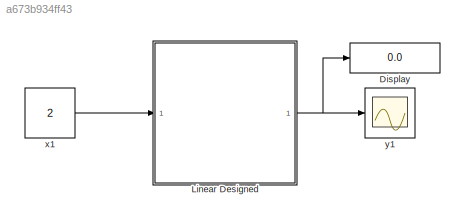
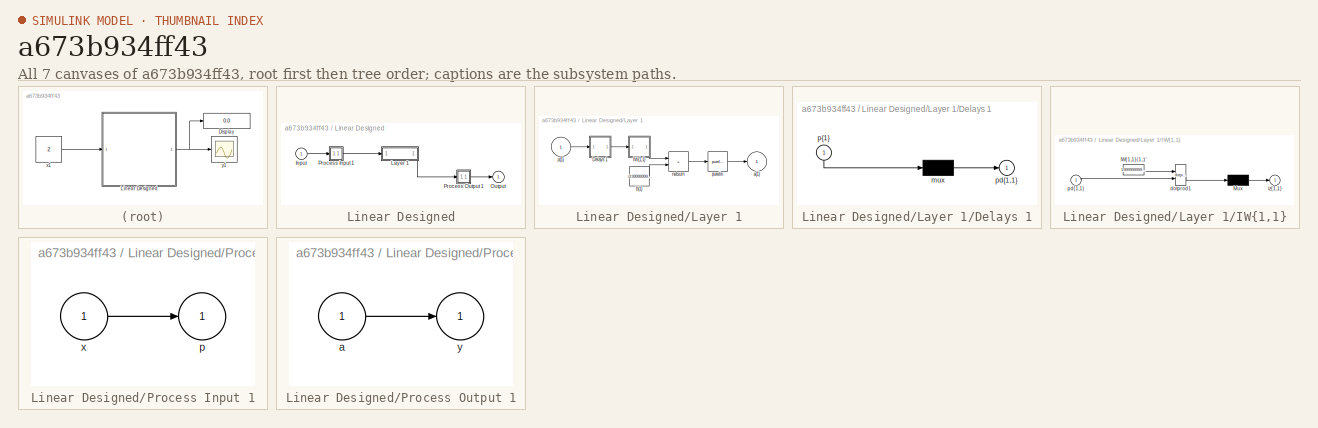
[diagram: thumbnail index - all 7 canvases of the model, root first then tree order]
MODEL slx_a673b934ff43
KIND model
CONFIG AbsTol = auto
CONFIG EnableMultiTasking = off
CONFIG FixedStep = auto
CONFIG MaxStep = auto
CONFIG MinStep = auto
CONFIG RelTol = 1e-3
CONFIG SampleTimeConstraint = Unconstrained
CONFIG SolverName = VariableStepAuto
CONFIG StartTime = 0.0
CONFIG StopTime = 10.0
BLOCK [Display] Display
  Decimation = 1
  Ports = [1]
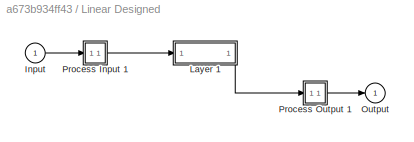
BLOCK [SubSystem] Linear Designed
  Ports = [1, 1]
  RequestExecContextInheritance = off
BLOCK [Inport] Linear Designed/Input
  PortDimensions = 1
  SampleTime = 1
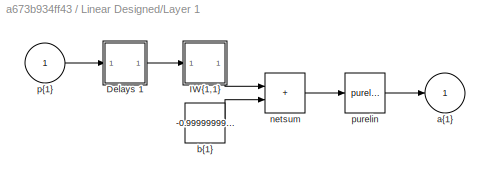
BLOCK [SubSystem] Linear Designed/Layer 1
  Ports = [1, 1]
  RequestExecContextInheritance = off
BLOCK [SubSystem] Linear Designed/Layer 1/Delays 1
  Ports = [1, 1]
  RequestExecContextInheritance = off
BLOCK [Mux] Linear Designed/Layer 1/Delays 1/mux
  Inputs = 1
  Ports = [1, 1]
BLOCK [Outport] Linear Designed/Layer 1/Delays 1/pd{1,1}
BLOCK [Inport] Linear Designed/Layer 1/Delays 1/p{1}
  NameLocation = left
  PortDimensions = 1
  SampleTime = 1
BLOCK [SubSystem] Linear Designed/Layer 1/IW{1,1}
  Ports = [1, 1]
  RequestExecContextInheritance = off
BLOCK [Constant] Linear Designed/Layer 1/IW{1,1}/IW{1,1}(1,:)'
  Value = 1.9999999999999997779553950749686919152736663818359375
BLOCK [Mux] Linear Designed/Layer 1/IW{1,1}/Mux
  Inputs = 1
  Ports = [1, 1]
BLOCK [Reference] Linear Designed/Layer 1/IW{1,1}/dotprod1  REF=neural/Weight Functions/dotprod
  Ports = [2, 1]
  SourceBlock = neural/Weight Functions/dotprod
  SourceProductBaseCode = NN
  SourceType = DOTPROD
BLOCK [Outport] Linear Designed/Layer 1/IW{1,1}/iz{1,1}
BLOCK [Inport] Linear Designed/Layer 1/IW{1,1}/pd{1,1}
  PortDimensions = 1
  SampleTime = 1
BLOCK [Outport] Linear Designed/Layer 1/a{1}
  InitialOutput = 0
BLOCK [Constant] Linear Designed/Layer 1/b{1}
  Value = -0.99999999999999966693309261245303787291049957275390625
BLOCK [Sum] Linear Designed/Layer 1/netsum
  IconShape = rectangular
  InputSameDT = on
  Inputs = 2
  OutDataTypeStr = Inherit: Same as first input
  Ports = [2, 1]
  SaturateOnIntegerOverflow = on
BLOCK [Reference] Linear Designed/Layer 1/purelin  REF=neural/Transfer Functions/purelin
  Ports = [1, 1]
  SourceBlock = neural/Transfer Functions/purelin
  SourceProductBaseCode = NN
  SourceType = PURELIN
BLOCK [Inport] Linear Designed/Layer 1/p{1}
  PortDimensions = 1
  SampleTime = 1
BLOCK [Outport] Linear Designed/Output
  InitialOutput = 0
BLOCK [SubSystem] Linear Designed/Process Input 1
  Ports = [1, 1]
  RequestExecContextInheritance = off
BLOCK [Outport] Linear Designed/Process Input 1/p
  PortDimensions = 1
  SampleTime = 1
BLOCK [Inport] Linear Designed/Process Input 1/x
  PortDimensions = 1
  SampleTime = 1
BLOCK [SubSystem] Linear Designed/Process Output 1
  Ports = [1, 1]
  RequestExecContextInheritance = off
BLOCK [Inport] Linear Designed/Process Output 1/a
  PortDimensions = 1
  SampleTime = 1
BLOCK [Outport] Linear Designed/Process Output 1/y
  PortDimensions = 1
  SampleTime = 1
BLOCK [Constant] x1
  SampleTime = 1
  Value = 2
BLOCK [Scope] y1
  Floating = off
  NumInputPorts = 1
  Ports = [1]
LINE Linear Designed/Input:1 -> Linear Designed/Process Input 1:1
LINE Linear Designed/Layer 1/Delays 1/mux:1 -> Linear Designed/Layer 1/Delays 1/pd{1,1}:1
LINE Linear Designed/Layer 1/Delays 1/p{1}:1 -> Linear Designed/Layer 1/Delays 1/mux:1
LINE Linear Designed/Layer 1/Delays 1:1 -> Linear Designed/Layer 1/IW{1,1}:1
LINE Linear Designed/Layer 1/IW{1,1}/IW{1,1}(1,:)':1 -> Linear Designed/Layer 1/IW{1,1}/dotprod1:1
LINE Linear Designed/Layer 1/IW{1,1}/Mux:1 -> Linear Designed/Layer 1/IW{1,1}/iz{1,1}:1
LINE Linear Designed/Layer 1/IW{1,1}/dotprod1:1 -> Linear Designed/Layer 1/IW{1,1}/Mux:1
LINE Linear Designed/Layer 1/IW{1,1}/pd{1,1}:1 -> Linear Designed/Layer 1/IW{1,1}/dotprod1:2
LINE Linear Designed/Layer 1/IW{1,1}:1 -> Linear Designed/Layer 1/netsum:1
LINE Linear Designed/Layer 1/b{1}:1 -> Linear Designed/Layer 1/netsum:2
LINE Linear Designed/Layer 1/netsum:1 -> Linear Designed/Layer 1/purelin:1
LINE Linear Designed/Layer 1/purelin:1 -> Linear Designed/Layer 1/a{1}:1
LINE Linear Designed/Layer 1/p{1}:1 -> Linear Designed/Layer 1/Delays 1:1
LINE Linear Designed/Layer 1:1 -> Linear Designed/Process Output 1:1
LINE Linear Designed/Process Input 1/x:1 -> Linear Designed/Process Input 1/p:1
LINE Linear Designed/Process Input 1:1 -> Linear Designed/Layer 1:1
LINE Linear Designed/Process Output 1/a:1 -> Linear Designed/Process Output 1/y:1
LINE Linear Designed/Process Output 1:1 -> Linear Designed/Output:1
NET Linear Designed:1 -> Display:1, y1:1
LINE x1:1 -> Linear Designed:1
note: NET lines group one-source signal fan-out (src -> all destinations, sorted); 1:1 wires keep LINE
